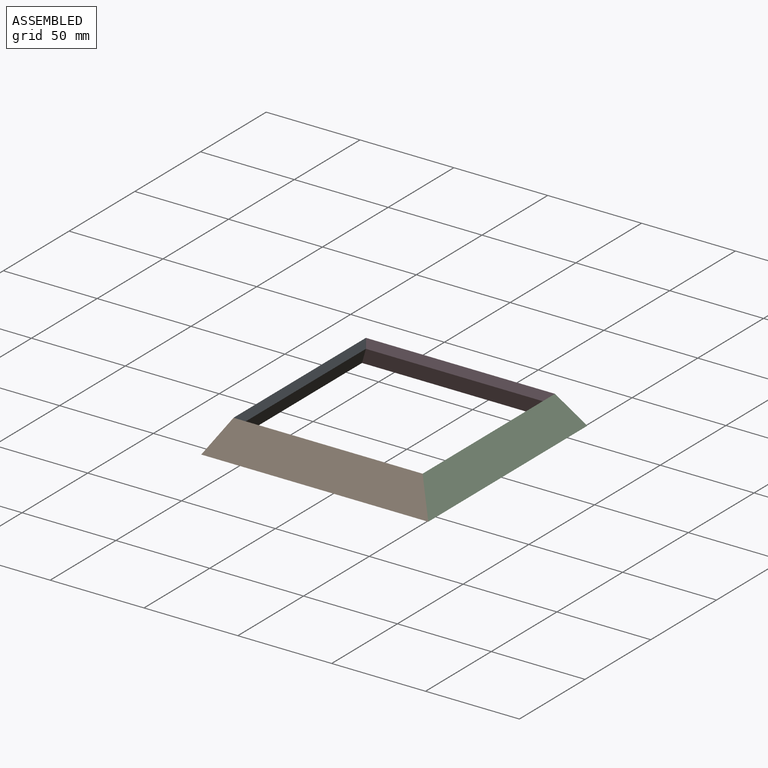
[diagram: assembled view]
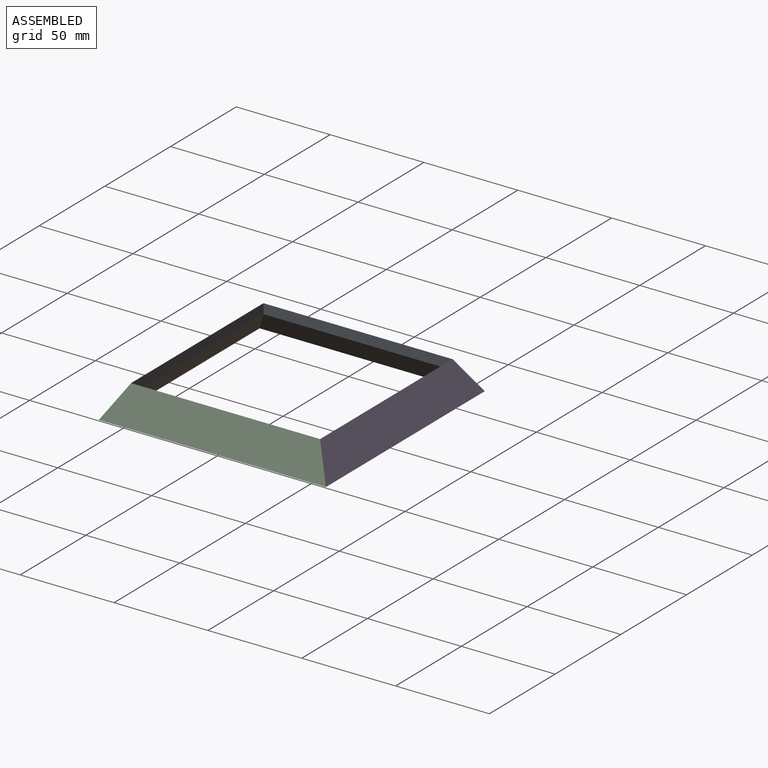
[diagram: assembled view, second angle]
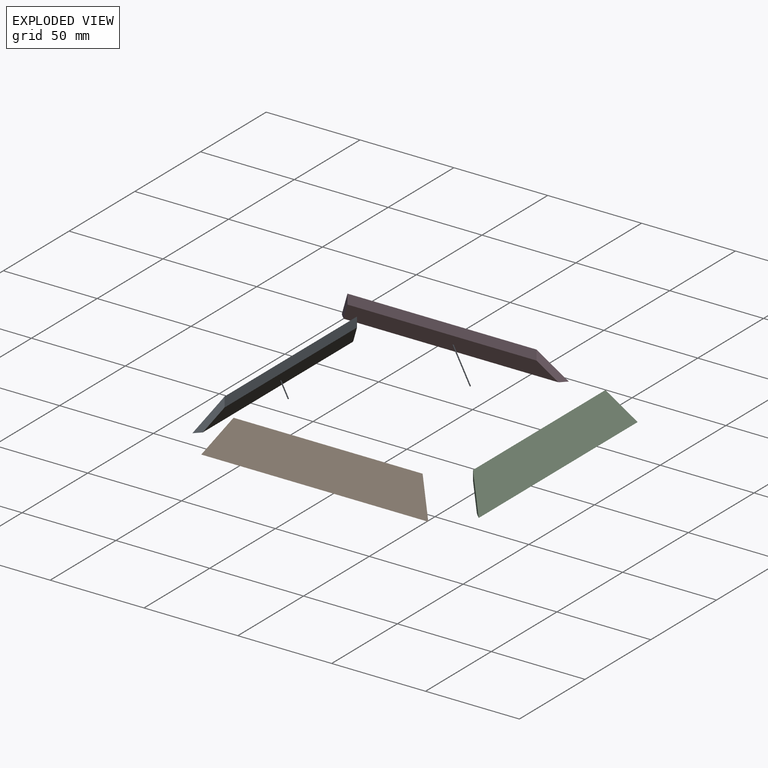
[diagram: exploded view]
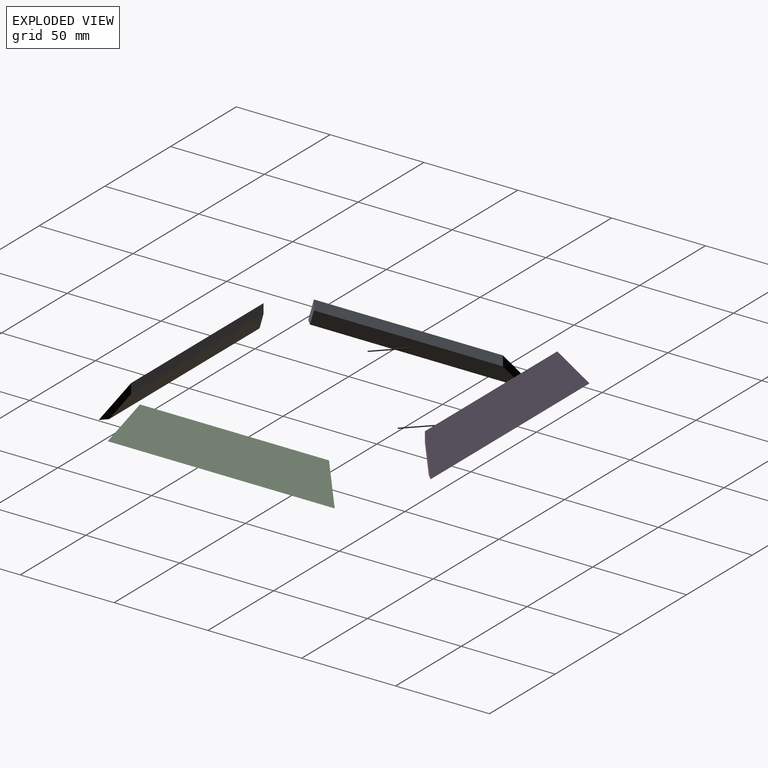
[diagram: exploded view, second angle]
ASSEMBLY  parts=4 mates=3
PART A: 10 faces, bbox 121x10.1x16.6 mm
  f0: plane 120.97x3.24mm, normal (0,0,-1), area 381.1mm2, adj f1,f3,f4,f5,f6,f7,f9
  f1: plane 114.5x11.27mm, normal (0,0.85,-0.52), area 1421.5mm2, adj f0,f2,f7,f9
  f2: plane 100.73x5.29mm, normal (0,1,0), area 532.9mm2, adj f1,f3,f4,f7,f9
  f3: plane 16.56x10.13mm, normal (0.85,0,0.52), area 0.1mm2, adj f0,f2,f4,f6,f7
  f4: plane 120.97x16.56mm, normal (0,-0.85,0.52), area 2151.7mm2, adj f0,f2,f3,f5,f9
  f5: plane 0.42x0.25mm, normal (-0.85,0,0.52), area 0mm2, adj f0,f4,f8,f9
  f6: plane 0x0mm, normal (-0.43,0.9,0), area 0mm2, adj f0,f3,f7
  f7: plane 16.55x10.12mm, normal (0.71,0.71,0), area 63.5mm2, adj f0,f1,f2,f3,f6
  f8: plane 0x0mm, normal (0.35,0.94,0), area 0mm2, adj f5,f9
  f9: plane 16.56x10.12mm, normal (-0.71,0.71,0), area 63.7mm2, adj f0,f1,f2,f4,f5,f8
PART B: same geometry as A
PART C: same geometry as A
PART D: same geometry as A
PLACE A rot(axis=(0,0,-1),90deg) t=(143.31,0.01,0.01)mm
PLACE B t=(143.3,0,0)mm
PLACE C rot(axis=(0,0,1),90deg) t=(143.31,-0.01,-0.01)mm
PLACE D rot(axis=(0,0,1),180deg) t=(143.32,0,-0.01)mm
MATE fastened D.f9 <-> C.f7  axis (0.71,-0.71,0) through (197.99,54.67,7.03)mm
MATE fastened A.f7 <-> B.f9  axis (0.71,-0.71,0) through (88.64,-54.67,7.04)mm
MATE fastened C.f9 <-> B.f7  axis (-0.71,-0.71,0) through (197.98,-54.67,7.04)mm
